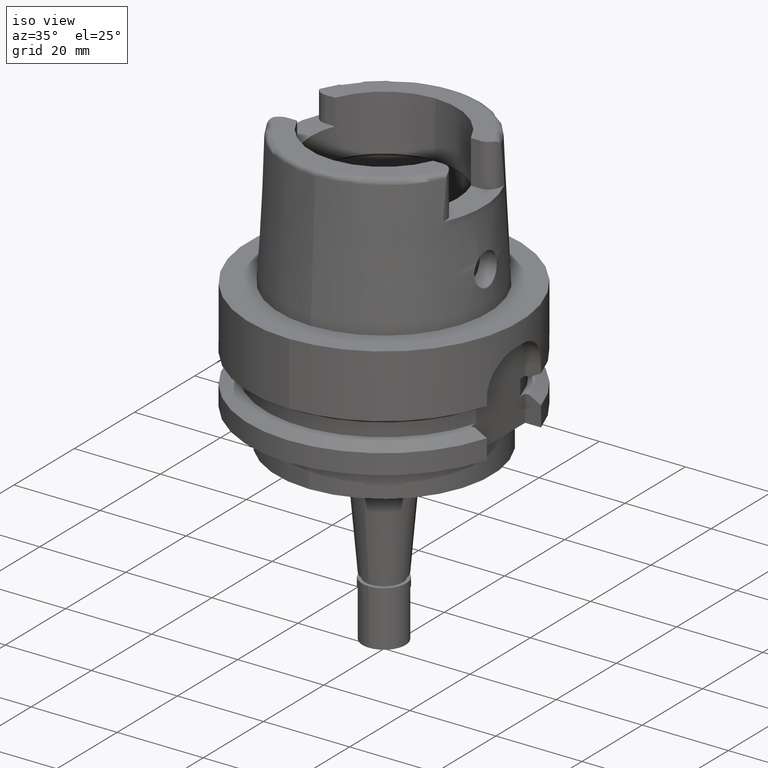
[diagram: clean part render]
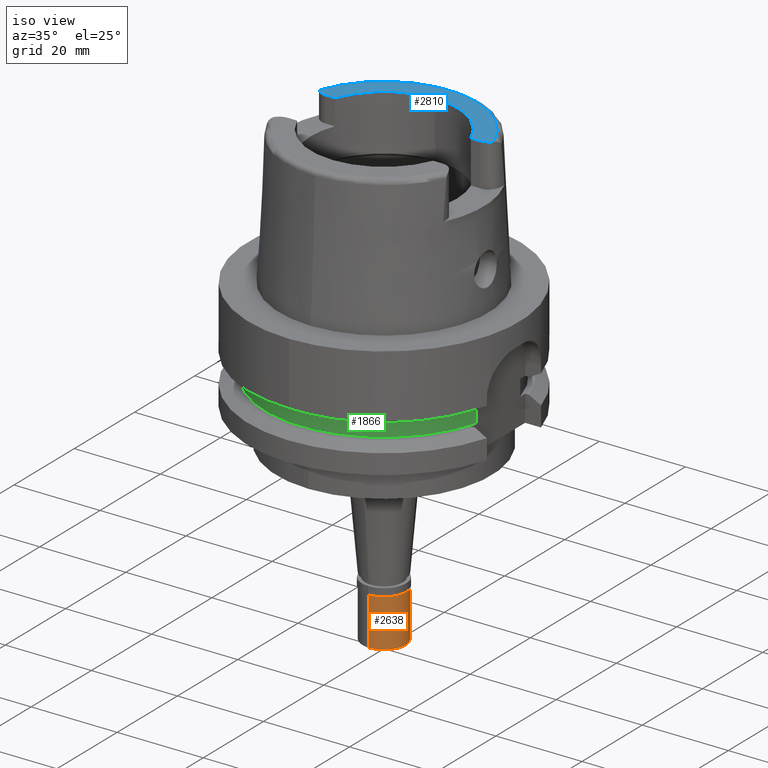
[diagram: same view with three faces highlighted in distinct colors, each labeled with its STEP entity id]
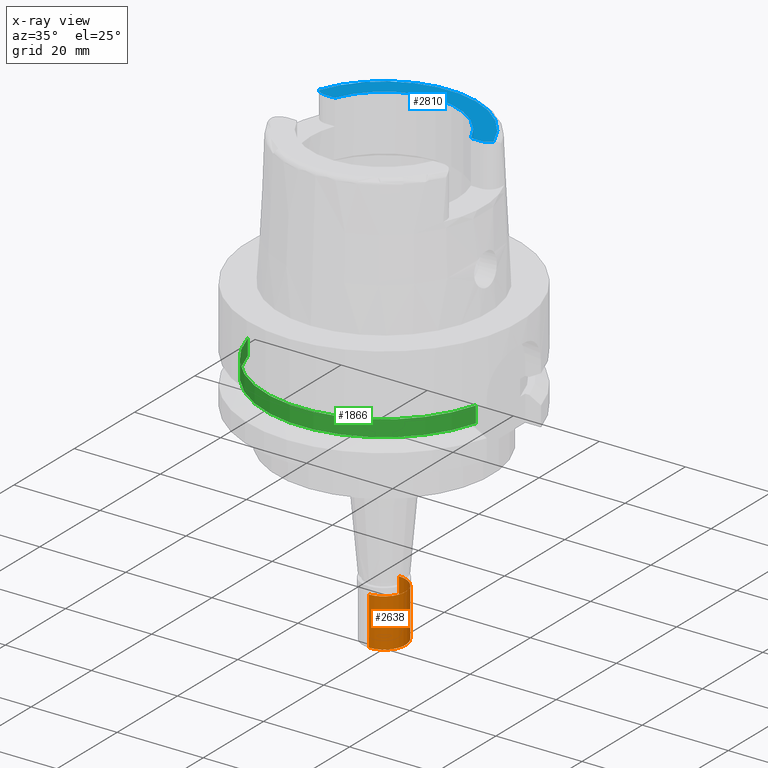
[diagram: x-ray of the same camera — body ghosted, the three highlighted faces saturated]
A machine part, iso view with three faces highlighted in distinct colors.
The next image is the same camera in x-ray (body ghosted, the three faces saturated) — at least one of them is partly hidden behind the body in this view.
Their STEP definitions:

[orange] entity #2638 — the highlighted cylindrical surface (edge-blend (fillet) strip) has radius 5 mm, axis along (0, 0, 1).
#85 = AXIS2_PLACEMENT_3D ( 'NONE', #5081, #5601, #5169 ) ;
#109 = CIRCLE ( 'NONE', #2376, 5.000000000000000000 ) ;
#327 = CARTESIAN_POINT ( 'NONE',  ( 0.0000000000000000000, -5.000000000000000000, -13.00000000000000000 ) ) ;
#367 = CARTESIAN_POINT ( 'NONE',  ( 0.0000000000000000000, 0.0000000000000000000, -13.00000000000000000 ) ) ;
#487 = DIRECTION ( 'NONE',  ( 0.0000000000000000000, 0.0000000000000000000, -1.000000000000000000 ) ) ;
#617 = VERTEX_POINT ( 'NONE', #327 ) ;
#794 = VERTEX_POINT ( 'NONE', #5320 ) ;
#945 = ORIENTED_EDGE ( 'NONE', *, *, #5034, .T. ) ;
#1236 = VECTOR ( 'NONE', #487, 1000.000000000000000 ) ;
#1576 = AXIS2_PLACEMENT_3D ( 'NONE', #367, #3867, #4660 ) ;
#1678 = EDGE_CURVE ( 'NONE', #3221, #794, #1738, .T. ) ;
#1738 = LINE ( 'NONE', #3471, #1236 ) ;
#2151 = CARTESIAN_POINT ( 'NONE',  ( 0.0000000000000000000, -5.000000000000000000, -1.800000000000000044 ) ) ;
#2376 = AXIS2_PLACEMENT_3D ( 'NONE', #3972, #3068, #4346 ) ;
#2436 = ORIENTED_EDGE ( 'NONE', *, *, #4057, .T. ) ;
#2638 = ADVANCED_FACE ( 'NONE', ( #3376 ), #5574, .T. ) ;
#2898 = CARTESIAN_POINT ( 'NONE',  ( 0.0000000000000000000, -5.000000000000000000, -1.800000000000000044 ) ) ;
#2977 = LINE ( 'NONE', #2898, #3025 ) ;
#3025 = VECTOR ( 'NONE', #5052, 1000.000000000000000 ) ;
#3068 = DIRECTION ( 'NONE',  ( 0.0000000000000000000, 0.0000000000000000000, -1.000000000000000000 ) ) ;
#3190 = EDGE_LOOP ( 'NONE', ( #4191, #2436, #945, #4322 ) ) ;
#3221 = VERTEX_POINT ( 'NONE', #4810 ) ;
#3296 = CIRCLE ( 'NONE', #1576, 5.000000000000000000 ) ;
#3376 = FACE_OUTER_BOUND ( 'NONE', #3190, .T. ) ;
#3449 = VERTEX_POINT ( 'NONE', #2151 ) ;
#3471 = CARTESIAN_POINT ( 'NONE',  ( 0.0000000000000000000, 5.000000000000000000, -1.800000000000000044 ) ) ;
#3712 = EDGE_CURVE ( 'NONE', #3221, #3449, #109, .T. ) ;
#3867 = DIRECTION ( 'NONE',  ( 0.0000000000000000000, 0.0000000000000000000, 1.000000000000000000 ) ) ;
#3972 = CARTESIAN_POINT ( 'NONE',  ( 0.0000000000000000000, 0.0000000000000000000, -1.800000000000000044 ) ) ;
#4057 = EDGE_CURVE ( 'NONE', #3449, #617, #2977, .T. ) ;
#4191 = ORIENTED_EDGE ( 'NONE', *, *, #3712, .T. ) ;
#4322 = ORIENTED_EDGE ( 'NONE', *, *, #1678, .F. ) ;
#4346 = DIRECTION ( 'NONE',  ( 0.0000000000000000000, 1.000000000000000000, 0.0000000000000000000 ) ) ;
#4660 = DIRECTION ( 'NONE',  ( 0.0000000000000000000, -1.000000000000000000, 0.0000000000000000000 ) ) ;
#4810 = CARTESIAN_POINT ( 'NONE',  ( 0.0000000000000000000, 5.000000000000000000, -1.800000000000000044 ) ) ;
#5034 = EDGE_CURVE ( 'NONE', #617, #794, #3296, .T. ) ;
#5052 = DIRECTION ( 'NONE',  ( 0.0000000000000000000, 0.0000000000000000000, -1.000000000000000000 ) ) ;
#5081 = CARTESIAN_POINT ( 'NONE',  ( 0.0000000000000000000, 0.0000000000000000000, -13.65000000000000036 ) ) ;
#5169 = DIRECTION ( 'NONE',  ( 0.0000000000000000000, 1.000000000000000000, 0.0000000000000000000 ) ) ;
#5320 = CARTESIAN_POINT ( 'NONE',  ( 0.0000000000000000000, 5.000000000000000000, -13.00000000000000000 ) ) ;
#5574 = CYLINDRICAL_SURFACE ( 'NONE', #85, 5.000000000000000000 ) ;
#5601 = DIRECTION ( 'NONE',  ( 0.0000000000000000000, 0.0000000000000000000, 1.000000000000000000 ) ) ;

[blue] entity #2810 — the highlighted planar face has unit normal (0, 0, -1).
#3 = AXIS2_PLACEMENT_3D ( 'NONE', #2510, #5620, #1182 ) ;
#12 = AXIS2_PLACEMENT_3D ( 'NONE', #1730, #3440, #791 ) ;
#218 = DIRECTION ( 'NONE',  ( 0.0000000000000000000, 0.0000000000000000000, -1.000000000000000000 ) ) ;
#274 = DIRECTION ( 'NONE',  ( 0.0000000000000000000, 0.0000000000000000000, 1.000000000000000000 ) ) ;
#384 = VECTOR ( 'NONE', #4856, 1000.000000000000000 ) ;
#429 = CARTESIAN_POINT ( 'NONE',  ( -15.80149043602999903, 6.270000000000000462, 32.00000000000000000 ) ) ;
#455 = EDGE_CURVE ( 'NONE', #3102, #2282, #4301, .T. ) ;
#513 = ORIENTED_EDGE ( 'NONE', *, *, #5347, .F. ) ;
#623 = DIRECTION ( 'NONE',  ( 0.0000000000000000000, 1.000000000000000000, 0.0000000000000000000 ) ) ;
#635 = CIRCLE ( 'NONE', #12, 2.880000000000000782 ) ;
#694 = CARTESIAN_POINT ( 'NONE',  ( 0.0000000000000000000, 1.679786782049999636E-14, 32.00000000000000000 ) ) ;
#778 = LINE ( 'NONE', #832, #3364 ) ;
#791 = DIRECTION ( 'NONE',  ( 0.0000000000000000000, -1.000000000000000000, 0.0000000000000000000 ) ) ;
#832 = CARTESIAN_POINT ( 'NONE',  ( -17.98999999999999844, 6.270000000000000462, 32.00000000000000000 ) ) ;
#919 = CARTESIAN_POINT ( 'NONE',  ( -17.98999999999999844, 6.270000000000000462, 32.00000000000000000 ) ) ;
#978 = DIRECTION ( 'NONE',  ( 0.0000000000000000000, 0.0000000000000000000, -1.000000000000000000 ) ) ;
#1023 = CIRCLE ( 'NONE', #3936, 21.57348458609000375 ) ;
#1030 = AXIS2_PLACEMENT_3D ( 'NONE', #3884, #3163, #623 ) ;
#1098 = CARTESIAN_POINT ( 'NONE',  ( 17.98999999999999844, 6.270000000000000462, 32.00000000000000000 ) ) ;
#1182 = DIRECTION ( 'NONE',  ( 0.7912216523763718756, -0.6115294733786784676, 0.0000000000000000000 ) ) ;
#1392 = LINE ( 'NONE', #2267, #384 ) ;
#1531 = ORIENTED_EDGE ( 'NONE', *, *, #2952, .F. ) ;
#1685 = ORIENTED_EDGE ( 'NONE', *, *, #5346, .F. ) ;
#1730 = CARTESIAN_POINT ( 'NONE',  ( -17.98999999999999844, 9.150000000000000355, 32.00000000000000000 ) ) ;
#1731 = CIRCLE ( 'NONE', #3, 2.880000000000003446 ) ;
#1777 = FACE_OUTER_BOUND ( 'NONE', #2691, .T. ) ;
#1778 = VERTEX_POINT ( 'NONE', #2033 ) ;
#1838 = AXIS2_PLACEMENT_3D ( 'NONE', #694, #274, #3230 ) ;
#1971 = ORIENTED_EDGE ( 'NONE', *, *, #455, .F. ) ;
#2033 = CARTESIAN_POINT ( 'NONE',  ( -20.26871835884000106, 7.388795116669998997, 32.00000000000000000 ) ) ;
#2188 = EDGE_CURVE ( 'NONE', #5397, #1778, #635, .T. ) ;
#2267 = CARTESIAN_POINT ( 'NONE',  ( 15.80149043602999903, 6.270000000000000462, 32.00000000000000000 ) ) ;
#2282 = VERTEX_POINT ( 'NONE', #429 ) ;
#2510 = CARTESIAN_POINT ( 'NONE',  ( 17.98999999999999844, 9.150000000000000355, 32.00000000000000000 ) ) ;
#2691 = EDGE_LOOP ( 'NONE', ( #1971, #513, #4633, #1531, #1685, #3092, #2790 ) ) ;
#2744 = CARTESIAN_POINT ( 'NONE',  ( 0.0000000000000000000, 1.601838013285000038E-14, 32.00000000000000000 ) ) ;
#2790 = ORIENTED_EDGE ( 'NONE', *, *, #2990, .T. ) ;
#2810 = ADVANCED_FACE ( 'NONE', ( #1777 ), #3536, .F. ) ;
#2846 = CIRCLE ( 'NONE', #1838, 17.00000000000000000 ) ;
#2952 = EDGE_CURVE ( 'NONE', #4472, #3797, #1731, .T. ) ;
#2990 = EDGE_CURVE ( 'NONE', #5397, #2282, #778, .T. ) ;
#3092 = ORIENTED_EDGE ( 'NONE', *, *, #2188, .F. ) ;
#3102 = VERTEX_POINT ( 'NONE', #3557 ) ;
#3163 = DIRECTION ( 'NONE',  ( 0.0000000000000000000, 0.0000000000000000000, 1.000000000000000000 ) ) ;
#3169 = CARTESIAN_POINT ( 'NONE',  ( 0.0000000000000000000, 1.616533774874999676E-14, 32.00000000000000000 ) ) ;
#3230 = DIRECTION ( 'NONE',  ( 0.9294994374136111848, 0.3688235294118045182, 0.0000000000000000000 ) ) ;
#3357 = CARTESIAN_POINT ( 'NONE',  ( 20.26871835884000106, 7.388795116668999796, 32.00000000000000000 ) ) ;
#3364 = VECTOR ( 'NONE', #4222, 1000.000000000000000 ) ;
#3440 = DIRECTION ( 'NONE',  ( 0.0000000000000000000, 0.0000000000000000000, -1.000000000000000000 ) ) ;
#3536 = PLANE ( 'NONE',  #4087 ) ;
#3557 = CARTESIAN_POINT ( 'NONE',  ( 0.0000000000000000000, 17.00000000000000000, 32.00000000000000000 ) ) ;
#3754 = EDGE_CURVE ( 'NONE', #4185, #3797, #1392, .T. ) ;
#3797 = VERTEX_POINT ( 'NONE', #1098 ) ;
#3884 = CARTESIAN_POINT ( 'NONE',  ( 0.0000000000000000000, 1.679786782049999636E-14, 32.00000000000000000 ) ) ;
#3936 = AXIS2_PLACEMENT_3D ( 'NONE', #2744, #218, #4595 ) ;
#4087 = AXIS2_PLACEMENT_3D ( 'NONE', #3169, #978, #5301 ) ;
#4185 = VERTEX_POINT ( 'NONE', #4982 ) ;
#4222 = DIRECTION ( 'NONE',  ( 1.000000000000000000, 8.684914379406999996E-14, 0.0000000000000000000 ) ) ;
#4301 = CIRCLE ( 'NONE', #1030, 17.00000000000000000 ) ;
#4472 = VERTEX_POINT ( 'NONE', #3357 ) ;
#4595 = DIRECTION ( 'NONE',  ( 0.0009289215035771249650, 0.9999995685523269673, 0.0000000000000000000 ) ) ;
#4633 = ORIENTED_EDGE ( 'NONE', *, *, #3754, .T. ) ;
#4856 = DIRECTION ( 'NONE',  ( 1.000000000000000000, -8.644330667353000255E-14, 0.0000000000000000000 ) ) ;
#4982 = CARTESIAN_POINT ( 'NONE',  ( 15.80149043602999903, 6.270000000000000462, 32.00000000000000000 ) ) ;
#5301 = DIRECTION ( 'NONE',  ( 0.0000000000000000000, -1.000000000000000000, 0.0000000000000000000 ) ) ;
#5346 = EDGE_CURVE ( 'NONE', #1778, #4472, #1023, .T. ) ;
#5347 = EDGE_CURVE ( 'NONE', #4185, #3102, #2846, .T. ) ;
#5397 = VERTEX_POINT ( 'NONE', #919 ) ;
#5620 = DIRECTION ( 'NONE',  ( 0.0000000000000000000, 0.0000000000000000000, -1.000000000000000000 ) ) ;

[green] entity #1866 — the highlighted cylindrical surface (partial cylindrical patch) has radius 27.5 mm, axis along (0, 0, -1).
#24 = CARTESIAN_POINT ( 'NONE',  ( 26.50000000000000000, -7.348469228349999938, -16.12500000000000000 ) ) ;
#141 = DIRECTION ( 'NONE',  ( 0.0000000000000000000, 0.0000000000000000000, -1.000000000000000000 ) ) ;
#217 = ORIENTED_EDGE ( 'NONE', *, *, #652, .T. ) ;
#244 = ORIENTED_EDGE ( 'NONE', *, *, #3086, .T. ) ;
#464 = VERTEX_POINT ( 'NONE', #5383 ) ;
#537 = AXIS2_PLACEMENT_3D ( 'NONE', #4760, #1792, #4328 ) ;
#561 = CARTESIAN_POINT ( 'NONE',  ( -26.50000000000000000, -7.348469228349999938, -19.87500000000000000 ) ) ;
#587 = CYLINDRICAL_SURFACE ( 'NONE', #4276, 27.50000000000000000 ) ;
#652 = EDGE_CURVE ( 'NONE', #3542, #2676, #767, .T. ) ;
#701 = CARTESIAN_POINT ( 'NONE',  ( -26.50000000000000000, -7.348469228349999938, -19.87500000000000000 ) ) ;
#767 = CIRCLE ( 'NONE', #2221, 27.50000000000000000 ) ;
#819 = CARTESIAN_POINT ( 'NONE',  ( 26.50000000000000000, -7.348469228349999938, -16.12500000000000000 ) ) ;
#1255 = EDGE_CURVE ( 'NONE', #4805, #2676, #1867, .T. ) ;
#1347 = DIRECTION ( 'NONE',  ( 0.0000000000000000000, 0.0000000000000000000, -1.000000000000000000 ) ) ;
#1372 = CIRCLE ( 'NONE', #537, 27.50000000000001066 ) ;
#1550 = EDGE_LOOP ( 'NONE', ( #3664, #217, #2336, #244 ) ) ;
#1792 = DIRECTION ( 'NONE',  ( 0.0000000000000000000, 0.0000000000000000000, 1.000000000000000000 ) ) ;
#1812 = CARTESIAN_POINT ( 'NONE',  ( 0.0000000000000000000, 1.679786782049999636E-14, 37.16499999999999915 ) ) ;
#1866 = ADVANCED_FACE ( 'NONE', ( #4001 ), #587, .T. ) ;
#1867 = LINE ( 'NONE', #561, #5590 ) ;
#2221 = AXIS2_PLACEMENT_3D ( 'NONE', #5215, #1347, #3074 ) ;
#2279 = EDGE_CURVE ( 'NONE', #3542, #464, #5553, .T. ) ;
#2336 = ORIENTED_EDGE ( 'NONE', *, *, #1255, .F. ) ;
#2517 = CARTESIAN_POINT ( 'NONE',  ( -26.50000000000000000, -7.348469228349999938, -16.12500000000000000 ) ) ;
#2553 = VECTOR ( 'NONE', #4777, 1000.000000000000000 ) ;
#2676 = VERTEX_POINT ( 'NONE', #2517 ) ;
#2757 = DIRECTION ( 'NONE',  ( 0.0000000000000000000, 0.0000000000000000000, 1.000000000000000000 ) ) ;
#3074 = DIRECTION ( 'NONE',  ( 0.0000000000000000000, -1.000000000000000000, 0.0000000000000000000 ) ) ;
#3086 = EDGE_CURVE ( 'NONE', #4805, #464, #1372, .T. ) ;
#3542 = VERTEX_POINT ( 'NONE', #819 ) ;
#3581 = DIRECTION ( 'NONE',  ( 0.0000000000000000000, -1.000000000000000000, 0.0000000000000000000 ) ) ;
#3664 = ORIENTED_EDGE ( 'NONE', *, *, #2279, .F. ) ;
#4001 = FACE_OUTER_BOUND ( 'NONE', #1550, .T. ) ;
#4276 = AXIS2_PLACEMENT_3D ( 'NONE', #1812, #141, #3581 ) ;
#4328 = DIRECTION ( 'NONE',  ( -0.9636363636363595164, -0.2672170628490889155, 0.0000000000000000000 ) ) ;
#4760 = CARTESIAN_POINT ( 'NONE',  ( 0.0000000000000000000, 1.679786782049999636E-14, -19.87500000000000000 ) ) ;
#4777 = DIRECTION ( 'NONE',  ( 0.0000000000000000000, 0.0000000000000000000, -1.000000000000000000 ) ) ;
#4805 = VERTEX_POINT ( 'NONE', #701 ) ;
#5215 = CARTESIAN_POINT ( 'NONE',  ( 0.0000000000000000000, 1.679786782049999636E-14, -16.12500000000000000 ) ) ;
#5383 = CARTESIAN_POINT ( 'NONE',  ( 26.50000000000000000, -7.348469228349999938, -19.87500000000000000 ) ) ;
#5553 = LINE ( 'NONE', #24, #2553 ) ;
#5590 = VECTOR ( 'NONE', #2757, 1000.000000000000000 ) ;